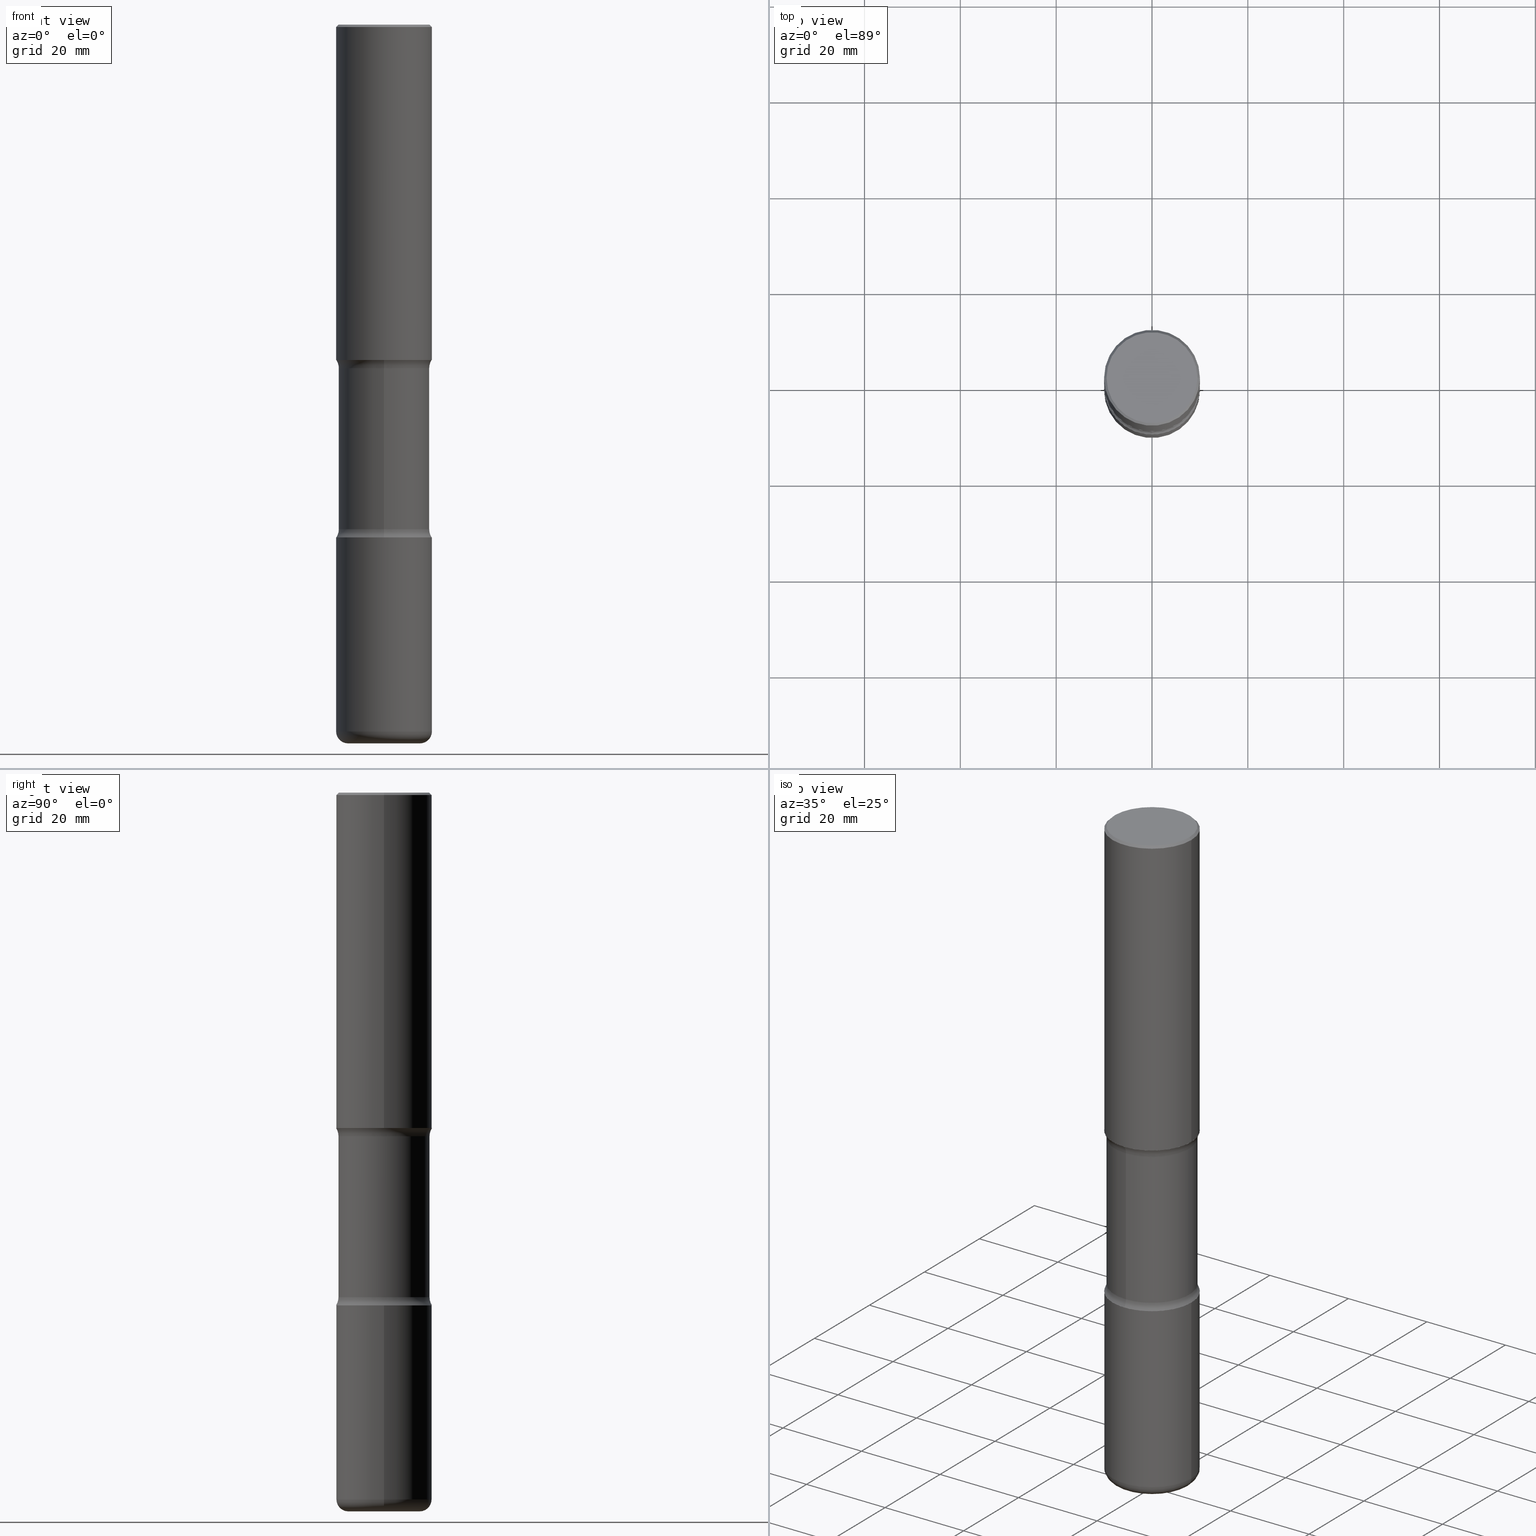
[diagram: canonical four-view strip — front | top / right | iso, engineering-drawing reading convention]
A machine part, canonical four-view strip (front | top / right | iso — engineering-drawing reading convention). The complete STEP part file that produces these views, byte-faithful:
ISO-10303-21;
HEADER;
FILE_DESCRIPTION (( 'STEP AP203' ),
    '1' );
FILE_NAME ('47755.STEP',
    '2024-03-02T08:35:50',
    ( '' ),
    ( '' ),
    'SwSTEP 2.0',
    'SolidWorks 2023',
    '' );
FILE_SCHEMA (( 'CONFIG_CONTROL_DESIGN' ));
ENDSEC;

DATA;
#1 = DIRECTION ( 'NONE',  ( 6.982962677686266711E-15, 1.000000000000000000, -2.921762560068729411E-15 ) ) ;
#2 = DIRECTION ( 'NONE',  ( 1.000000000000000000, -6.982962677686267499E-15, 4.883557194083112901E-29 ) ) ;
#3 = DIRECTION ( 'NONE',  ( 2.499563752616943710E-29, -3.414014296659653741E-15, -1.000000000000000000 ) ) ;
#4 = DIRECTION ( 'NONE',  ( -1.000000000000000000, 6.982962677686266711E-15, 0.000000000000000000 ) ) ;
#5 = DIRECTION ( 'NONE',  ( 1.000000000000000000, 0.000000000000000000, 0.000000000000000000 ) ) ;
#6 = ADVANCED_FACE ( 'NONE', ( #258 ), #403, .T. ) ;
#7 = AXIS2_PLACEMENT_3D ( 'NONE', #197, #68, #147 ) ;
#8 = AXIS2_PLACEMENT_3D ( 'NONE', #211, #200, #552 ) ;
#9 = PLANE ( 'NONE',  #429 ) ;
#10 = MECHANICAL_CONTEXT ( 'NONE', #318, 'mechanical' ) ;
#11 = ORIENTED_EDGE ( 'NONE', *, *, #72, .T. ) ;
#12 = CC_DESIGN_DATE_AND_TIME_ASSIGNMENT ( #285, #29, ( #149 ) ) ;
#13 = CYLINDRICAL_SURFACE ( 'NONE', #362, 0.3937000000000003830 ) ;
#14 = VERTEX_POINT ( 'NONE', #235 ) ;
#15 = CYLINDRICAL_SURFACE ( 'NONE', #461, 0.3740000000000001656 ) ;
#16 = CIRCLE ( 'NONE', #354, 0.3736999999999999211 ) ;
#17 = AXIS2_PLACEMENT_3D ( 'NONE', #75, #556, #2 ) ;
#18 = PERSON_AND_ORGANIZATION_ROLE ( 'design_supplier' ) ;
#19 = CARTESIAN_POINT ( 'NONE',  ( 1.420108190439770332E-28, -2.027538128279602429E-14, -5.807099999999998374 ) ) ;
#20 = COORDINATED_UNIVERSAL_TIME_OFFSET ( 5, 0, .BEHIND. ) ;
#21 = EDGE_CURVE ( 'NONE', #129, #203, #104, .T. ) ;
#22 = CARTESIAN_POINT ( 'NONE',  ( 2.611628041454766160E-15, 0.3739999999999856772, -4.145243411606584161 ) ) ;
#23 = APPROVAL_ROLE ( '' ) ;
#24 = EDGE_LOOP ( 'NONE', ( #51, #288 ) ) ;
#25 = CARTESIAN_POINT ( 'NONE',  ( 1.030178189293550378E-28, -1.470821428801063089E-14, -4.212599999999998346 ) ) ;
#26 = VERTEX_POINT ( 'NONE', #520 ) ;
#27 = CIRCLE ( 'NONE', #295, 0.3937000000000004385 ) ;
#28 = CC_DESIGN_APPROVAL ( #449, ( #252 ) ) ;
#29 = DATE_TIME_ROLE ( 'classification_date' ) ;
#30 = ORIENTED_EDGE ( 'NONE', *, *, #78, .F. ) ;
#31 = DIRECTION ( 'NONE',  ( 1.000000000000000000, -6.860497997771530774E-15, 4.841747577276637457E-29 ) ) ;
#32 = VERTEX_POINT ( 'NONE', #95 ) ;
#33 = DATE_AND_TIME ( #233, #402 ) ;
#34 = PRODUCT_RELATED_PRODUCT_CATEGORY ( 'detail', '', ( #165 ) ) ;
#35 = EDGE_LOOP ( 'NONE', ( #347, #413 ) ) ;
#36 = LINE ( 'NONE', #283, #181 ) ;
#37 = ORIENTED_EDGE ( 'NONE', *, *, #21, .F. ) ;
#38 = DIRECTION ( 'NONE',  ( -6.982962677686268288E-15, -1.000000000000000000, 0.000000000000000000 ) ) ;
#39 = CLOSED_SHELL ( 'NONE', ( #6, #437, #168, #468, #208, #277 ) ) ;
#40 = AXIS2_PLACEMENT_3D ( 'NONE', #377, #407, #505 ) ;
#41 = EDGE_LOOP ( 'NONE', ( #379, #350 ) ) ;
#42 = DIRECTION ( 'NONE',  ( 6.982962677686265922E-15, 1.000000000000000000, -2.775563112689114723E-15 ) ) ;
#43 = EDGE_CURVE ( 'NONE', #330, #217, #496, .T. ) ;
#44 = DIRECTION ( 'NONE',  ( 1.000000000000000000, -6.982962677686270655E-15, 0.000000000000000000 ) ) ;
#45 = CARTESIAN_POINT ( 'NONE',  ( 1.013341980608738414E-28, -1.447825793226129018E-14, -4.145243411606583273 ) ) ;
#46 = ORIENTED_EDGE ( 'NONE', *, *, #388, .F. ) ;
#47 = CLOSED_SHELL ( 'NONE', ( #530, #448, #457, #334, #73, #184 ) ) ;
#48 = CIRCLE ( 'NONE', #470, 0.3936999999999999389 ) ;
#49 = APPROVAL_PERSON_ORGANIZATION ( #492, #449, #263 ) ;
#50 = DIRECTION ( 'NONE',  ( 2.499563752616943710E-29, -3.414014296659653741E-15, -1.000000000000000000 ) ) ;
#51 = ORIENTED_EDGE ( 'NONE', *, *, #434, .F. ) ;
#52 = CARTESIAN_POINT ( 'NONE',  ( 1.030178189293550378E-28, -1.470821428801063089E-14, -4.212599999999998346 ) ) ;
#53 = LINE ( 'NONE', #531, #525 ) ;
#54 = VERTEX_POINT ( 'NONE', #517 ) ;
#55 = DIRECTION ( 'NONE',  ( 1.000000000000000000, -6.860497997771530774E-15, 4.841747577276637457E-29 ) ) ;
#56 = AXIS2_PLACEMENT_3D ( 'NONE', #253, #511, #273 ) ;
#57 = DIRECTION ( 'NONE',  ( 6.982962677686266711E-15, 1.000000000000000000, -2.921762560068729411E-15 ) ) ;
#58 = CIRCLE ( 'NONE', #331, 0.3937000000000004940 ) ;
#59 = CARTESIAN_POINT ( 'NONE',  ( 0.3736999999999999211, -2.667287895133367964E-15, 8.537024980219274507E-18 ) ) ;
#60 = COORDINATED_UNIVERSAL_TIME_OFFSET ( 5, 0, .BEHIND. ) ;
#61 = MANIFOLD_SOLID_BREP ( 'Body-Move/Copy2[2]', #39 ) ;
#62 = AXIS2_PLACEMENT_3D ( 'NONE', #560, #478, #293 ) ;
#63 = APPROVAL_DATE_TIME ( #33, #167 ) ;
#64 = CYLINDRICAL_SURFACE ( 'NONE', #7, 0.3740000000000001656 ) ;
#65 = ADVANCED_FACE ( 'NONE', ( #228 ), #146, .F. ) ;
#66 = CARTESIAN_POINT ( 'NONE',  ( -3.423388500887925735E-15, -0.4990000000000099356, -2.823256588393412425 ) ) ;
#67 = ORIENTED_EDGE ( 'NONE', *, *, #451, .T. ) ;
#68 = DIRECTION ( 'NONE',  ( 2.499563752616943710E-29, -3.414014296659653741E-15, -1.000000000000000000 ) ) ;
#69 = CIRCLE ( 'NONE', #278, 0.3937000000000002720 ) ;
#70 = ORIENTED_EDGE ( 'NONE', *, *, #493, .T. ) ;
#71 = DIRECTION ( 'NONE',  ( -2.445468806185136597E-29, 3.491481338843145583E-15, 1.000000000000000000 ) ) ;
#72 = EDGE_CURVE ( 'NONE', #203, #346, #368, .T. ) ;
#73 = ADVANCED_FACE ( 'NONE', ( #431 ), #310, .T. ) ;
#74 = ORIENTED_EDGE ( 'NONE', *, *, #559, .T. ) ;
#75 = CARTESIAN_POINT ( 'NONE',  ( 1.420108190439770332E-28, -2.027538128279602429E-14, -5.807099999999998374 ) ) ;
#76 = CIRCLE ( 'NONE', #98, 0.3937000000000002720 ) ;
#77 = APPROVAL_PERSON_ORGANIZATION ( #374, #474, #450 ) ;
#78 = EDGE_CURVE ( 'NONE', #26, #137, #119, .T. ) ;
#79 = CARTESIAN_POINT ( 'NONE',  ( 4.890937612370298557E-31, -6.982962677686327354E-17, -0.02000000000000010103 ) ) ;
#80 = FACE_OUTER_BOUND ( 'NONE', #41, .T. ) ;
#81 = DIRECTION ( 'NONE',  ( 6.982962677686266711E-15, 1.000000000000000000, -2.921762560068729411E-15 ) ) ;
#82 = FACE_OUTER_BOUND ( 'NONE', #316, .T. ) ;
#83 = DIRECTION ( 'NONE',  ( -6.982962677686266711E-15, -1.000000000000000000, 3.491481338843145583E-15 ) ) ;
#84 = CLOSED_SHELL ( 'NONE', ( #557, #373, #239, #191, #173, #108, #65, #282 ) ) ;
#85 = CONICAL_SURFACE ( 'NONE', #526, 0.3936999999999999389, 0.7853981633974471688 ) ;
#86 = CARTESIAN_POINT ( 'NONE',  ( -0.3937000000000001054, 2.797406750687515181E-15, -1.936584745033357016E-29 ) ) ;
#87 = ORIENTED_EDGE ( 'NONE', *, *, #538, .T. ) ;
#88 = CARTESIAN_POINT ( 'NONE',  ( 1.030178189293550378E-28, -1.470821428801063089E-14, -4.212599999999998346 ) ) ;
#89 = PERSON_AND_ORGANIZATION ( #396, #344 ) ;
#90 = CARTESIAN_POINT ( 'NONE',  ( 3.484498376165549498E-15, 0.4989999999999857327, -4.145243411606585049 ) ) ;
#91 = DIRECTION ( 'NONE',  ( 2.499563752616943430E-29, -3.414014296659653741E-15, -1.000000000000000000 ) ) ;
#92 = ORIENTED_EDGE ( 'NONE', *, *, #367, .T. ) ;
#93 = CC_DESIGN_DATE_AND_TIME_ASSIGNMENT ( #308, #486, ( #252 ) ) ;
#94 = ORIENTED_EDGE ( 'NONE', *, *, #178, .T. ) ;
#95 = CARTESIAN_POINT ( 'NONE',  ( -0.3937000000000002720, -2.048594773559823141E-15, -2.755899999999998240 ) ) ;
#96 = ORIENTED_EDGE ( 'NONE', *, *, #210, .F. ) ;
#97 = EDGE_CURVE ( 'NONE', #54, #247, #541, .T. ) ;
#98 = AXIS2_PLACEMENT_3D ( 'NONE', #381, #50, #42 ) ;
#99 = PERSON_AND_ORGANIZATION_ROLE ( 'creator' ) ;
#100 = PERSON_AND_ORGANIZATION_ROLE ( 'design_owner' ) ;
#101 = EDGE_CURVE ( 'NONE', #400, #14, #27, .T. ) ;
#102 = VERTEX_POINT ( 'NONE', #59 ) ;
#103 = COORDINATED_UNIVERSAL_TIME_OFFSET ( 5, 0, .BEHIND. ) ;
#104 = CIRCLE ( 'NONE', #417, 0.1249999999999999029 ) ;
#105 = DIRECTION ( 'NONE',  ( -2.445468806185136597E-29, 3.491481338843145583E-15, 1.000000000000000000 ) ) ;
#106 = CIRCLE ( 'NONE', #176, 0.3937000000000004940 ) ;
#107 = VECTOR ( 'NONE', #519, 39.37007874015748143 ) ;
#108 = ADVANCED_FACE ( 'NONE', ( #256 ), #397, .F. ) ;
#109 = CARTESIAN_POINT ( 'NONE',  ( 1.420108190439770332E-28, -2.027538128279602429E-14, -5.807099999999998374 ) ) ;
#110 = DIRECTION ( 'NONE',  ( 1.000000000000000000, -6.982962677686270655E-15, 0.000000000000000000 ) ) ;
#111 = EDGE_CURVE ( 'NONE', #346, #203, #213, .T. ) ;
#112 = TOROIDAL_SURFACE ( 'NONE', #320, 0.2953000000000005620, 0.09840000000000062585 ) ;
#113 = ORIENTED_EDGE ( 'NONE', *, *, #97, .F. ) ;
#114 = DIRECTION ( 'NONE',  ( -0.7071067811865466846, 2.468850131082247989E-15, -0.7071067811865483499 ) ) ;
#115 = ORIENTED_EDGE ( 'NONE', *, *, #510, .T. ) ;
#116 = ORIENTED_EDGE ( 'NONE', *, *, #341, .F. ) ;
#117 = CARTESIAN_POINT ( 'NONE',  ( 0.3936999999999999389, -2.770807688499514945E-15, -0.02000000000000010103 ) ) ;
#118 = LINE ( 'NONE', #86, #361 ) ;
#119 = CIRCLE ( 'NONE', #383, 0.3740000000000001656 ) ;
#120 = AXIS2_PLACEMENT_3D ( 'NONE', #300, #439, #1 ) ;
#121 = AXIS2_PLACEMENT_3D ( 'NONE', #555, #428, #382 ) ;
#122 = FACE_OUTER_BOUND ( 'NONE', #35, .T. ) ;
#123 = DIRECTION ( 'NONE',  ( 1.000000000000000000, -6.982962677686265133E-15, 0.000000000000000000 ) ) ;
#124 = ORIENTED_EDGE ( 'NONE', *, *, #205, .F. ) ;
#125 = PRODUCT_DEFINITION_SHAPE ( 'NONE', 'NONE',  #252 ) ;
#126 = CARTESIAN_POINT ( 'NONE',  ( 0.2953000000000005620, -2.233745016151678477E-14, -5.807099999999998374 ) ) ;
#127 = ORIENTED_EDGE ( 'NONE', *, *, #205, .T. ) ;
#128 = DIRECTION ( 'NONE',  ( -2.445468806185136597E-29, 3.491481338843145583E-15, 1.000000000000000000 ) ) ;
#129 = VERTEX_POINT ( 'NONE', #169 ) ;
#130 = EDGE_CURVE ( 'NONE', #313, #346, #286, .T. ) ;
#131 = CARTESIAN_POINT ( 'NONE',  ( 4.890937612370298557E-31, -6.982962677686327354E-17, -0.02000000000000010103 ) ) ;
#132 = TOROIDAL_SURFACE ( 'NONE', #201, 0.4990000000000000546, 0.1249999999999998612 ) ;
#133 = DIRECTION ( 'NONE',  ( 2.499563752616943710E-29, -3.414014296659653741E-15, -1.000000000000000000 ) ) ;
#134 = CC_DESIGN_PERSON_AND_ORGANIZATION_ASSIGNMENT ( #533, #100, ( #165 ) ) ;
#135 = CARTESIAN_POINT ( 'NONE',  ( -2.565826251166408560E-15, -0.3740000000000206493, -5.905499999999997307 ) ) ;
#136 = CARTESIAN_POINT ( 'NONE',  ( 1.030178189293550378E-28, -1.470821428801063089E-14, -4.212599999999998346 ) ) ;
#137 = VERTEX_POINT ( 'NONE', #475 ) ;
#138 = APPROVAL_STATUS ( 'not_yet_approved' ) ;
#139 = ORIENTED_EDGE ( 'NONE', *, *, #459, .F. ) ;
#140 = EDGE_LOOP ( 'NONE', ( #325, #74, #67, #96 ) ) ;
#141 = AXIS2_PLACEMENT_3D ( 'NONE', #52, #269, #523 ) ;
#142 = APPROVAL_PERSON_ORGANIZATION ( #89, #167, #23 ) ;
#143 =( LENGTH_UNIT ( ) NAMED_UNIT ( * ) SI_UNIT ( $, .METRE. ) );
#144 = EDGE_LOOP ( 'NONE', ( #339, #337, #359, #466 ) ) ;
#145 = DIRECTION ( 'NONE',  ( -2.445468806185136877E-29, 3.491481338843145188E-15, 1.000000000000000000 ) ) ;
#146 = TOROIDAL_SURFACE ( 'NONE', #294, 0.4990000000000002212, 0.1249999999999998751 ) ;
#147 = DIRECTION ( 'NONE',  ( 6.982962677686266711E-15, 1.000000000000000000, -2.921762560068729411E-15 ) ) ;
#148 = AXIS2_PLACEMENT_3D ( 'NONE', #66, #31, #545 ) ;
#149 = SECURITY_CLASSIFICATION ( '', '', #193 ) ;
#150 = DIRECTION ( 'NONE',  ( 1.000000000000000000, -6.982962677686269077E-15, 0.000000000000000000 ) ) ;
#151 = CARTESIAN_POINT ( 'NONE',  ( -2.087702828670439639E-46, 2.980686340760894400E-32, 8.537024980200822558E-18 ) ) ;
#152 = ORIENTED_EDGE ( 'NONE', *, *, #160, .F. ) ;
#153 = DIRECTION ( 'NONE',  ( 1.000000000000000000, -6.982962677686266711E-15, 4.876212485538976239E-29 ) ) ;
#154 = AXIS2_PLACEMENT_3D ( 'NONE', #522, #128, #44 ) ;
#155 = ORIENTED_EDGE ( 'NONE', *, *, #335, .T. ) ;
#156 = LINE ( 'NONE', #338, #107 ) ;
#157 = ORIENTED_EDGE ( 'NONE', *, *, #459, .T. ) ;
#158 = EDGE_LOOP ( 'NONE', ( #521, #321, #115, #554 ) ) ;
#159 = CARTESIAN_POINT ( 'NONE',  ( 6.660667374498401538E-29, -9.735019662066511300E-15, -2.755899999999998240 ) ) ;
#160 = EDGE_CURVE ( 'NONE', #137, #26, #190, .T. ) ;
#161 = CARTESIAN_POINT ( 'NONE',  ( 4.890937612370298557E-31, -6.982962677686327354E-17, -0.02000000000000010103 ) ) ;
#162 = CIRCLE ( 'NONE', #62, 0.3937000000000002164 ) ;
#163 = FACE_OUTER_BOUND ( 'NONE', #551, .T. ) ;
#164 = VECTOR ( 'NONE', #180, 39.37007874015748143 ) ;
#165 = PRODUCT ( '47755', '47755', '', ( #10 ) ) ;
#166 = CARTESIAN_POINT ( 'NONE',  ( 3.484498376165515577E-15, 0.4989999999999901736, -2.823256588393415534 ) ) ;
#167 = APPROVAL ( #265, 'UNSPECIFIED' ) ;
#168 = ADVANCED_FACE ( 'NONE', ( #221 ), #240, .T. ) ;
#169 = CARTESIAN_POINT ( 'NONE',  ( 2.749192406205187346E-15, 0.3936999999999854505, -4.212600000000000122 ) ) ;
#170 = DIRECTION ( 'NONE',  ( 6.982962677686265922E-15, 1.000000000000000000, -2.775563112689113540E-15 ) ) ;
#171 = CARTESIAN_POINT ( 'NONE',  ( -3.423388500887893787E-15, -0.4990000000000146541, -4.145243411606581496 ) ) ;
#172 =( CONVERSION_BASED_UNIT ( 'INCH', #268 ) LENGTH_UNIT ( ) NAMED_UNIT ( #542 ) );
#173 = ADVANCED_FACE ( 'NONE', ( #264 ), #425, .F. ) ;
#174 = CARTESIAN_POINT ( 'NONE',  ( 6.739467482965614869E-29, -9.622173421717819657E-15, -2.755899999999998240 ) ) ;
#175 = ORIENTED_EDGE ( 'NONE', *, *, #234, .F. ) ;
#176 = AXIS2_PLACEMENT_3D ( 'NONE', #109, #454, #328 ) ;
#177 = DIRECTION ( 'NONE',  ( 2.499563752616943710E-29, -3.414014296659653741E-15, -1.000000000000000000 ) ) ;
#178 = EDGE_CURVE ( 'NONE', #137, #203, #53, .T. ) ;
#179 = CARTESIAN_POINT ( 'NONE',  ( 0.000000000000000000, 0.000000000000000000, 0.000000000000000000 ) ) ;
#180 = DIRECTION ( 'NONE',  ( -2.445468806185136877E-29, 3.491481338843145188E-15, 1.000000000000000000 ) ) ;
#181 = VECTOR ( 'NONE', #145, 39.37007874015748143 ) ;
#182 = CARTESIAN_POINT ( 'NONE',  ( 0.3936999999999999389, -2.770807688499514945E-15, -0.02000000000000010103 ) ) ;
#183 = ORIENTED_EDGE ( 'NONE', *, *, #178, .F. ) ;
#184 = ADVANCED_FACE ( 'NONE', ( #393 ), #9, .F. ) ;
#185 = CARTESIAN_POINT ( 'NONE',  ( 4.890937612370298557E-31, -6.982962677686327354E-17, -0.02000000000000010103 ) ) ;
#186 = ORIENTED_EDGE ( 'NONE', *, *, #430, .F. ) ;
#187 = FACE_OUTER_BOUND ( 'NONE', #158, .T. ) ;
#188 = AXIS2_PLACEMENT_3D ( 'NONE', #540, #463, #458 ) ;
#189 = PLANE ( 'NONE',  #40 ) ;
#190 = CIRCLE ( 'NONE', #460, 0.3740000000000001656 ) ;
#191 = ADVANCED_FACE ( 'NONE', ( #163 ), #536, .F. ) ;
#192 = EDGE_CURVE ( 'NONE', #26, #400, #259, .T. ) ;
#193 = SECURITY_CLASSIFICATION_LEVEL ( 'unclassified' ) ;
#194 = DIRECTION ( 'NONE',  ( 2.499563752616943710E-29, -3.414014296659653741E-15, -1.000000000000000000 ) ) ;
#195 = APPROVAL_DATE_TIME ( #405, #474 ) ;
#196 = ORIENTED_EDGE ( 'NONE', *, *, #111, .T. ) ;
#197 = CARTESIAN_POINT ( 'NONE',  ( 1.453329336974072664E-28, -2.048779909082575425E-14, -5.905499999999998195 ) ) ;
#198 = ORIENTED_EDGE ( 'NONE', *, *, #111, .F. ) ;
#199 = UNCERTAINTY_MEASURE_WITH_UNIT (LENGTH_MEASURE( 1.000000000000000082E-05 ), #172, 'distance_accuracy_value', 'NONE');
#200 = DIRECTION ( 'NONE',  ( 2.438088387897960049E-29, -3.491481338843145188E-15, -1.000000000000000000 ) ) ;
#201 = AXIS2_PLACEMENT_3D ( 'NONE', #411, #194, #502 ) ;
#202 = CIRCLE ( 'NONE', #261, 0.3937000000000002164 ) ;
#203 = VERTEX_POINT ( 'NONE', #22 ) ;
#204 = ORIENTED_EDGE ( 'NONE', *, *, #388, .T. ) ;
#205 = EDGE_CURVE ( 'NONE', #247, #54, #69, .T. ) ;
#206 = ORIENTED_EDGE ( 'NONE', *, *, #231, .T. ) ;
#207 = DIRECTION ( 'NONE',  ( -1.000000000000000000, 7.105427357600994759E-15, 0.000000000000000000 ) ) ;
#208 = ADVANCED_FACE ( 'NONE', ( #455 ), #189, .F. ) ;
#209 = DIRECTION ( 'NONE',  ( 2.499563752616943710E-29, -3.414014296659653741E-15, -1.000000000000000000 ) ) ;
#210 = EDGE_CURVE ( 'NONE', #301, #484, #364, .T. ) ;
#211 = CARTESIAN_POINT ( 'NONE',  ( 2.609533152651356620E-15, 0.3736999999999999211, -1.300498063835582814E-15 ) ) ;
#212 = EDGE_CURVE ( 'NONE', #102, #301, #16, .T. ) ;
#213 = CIRCLE ( 'NONE', #504, 0.3740000000000001656 ) ;
#214 = DIRECTION ( 'NONE',  ( 6.982962677686266711E-15, 1.000000000000000000, -2.921762560068729411E-15 ) ) ;
#215 = CC_DESIGN_APPROVAL ( #474, ( #149 ) ) ;
#216 = ORIENTED_EDGE ( 'NONE', *, *, #559, .F. ) ;
#217 = VERTEX_POINT ( 'NONE', #237 ) ;
#218 = CARTESIAN_POINT ( 'NONE',  ( 6.660667374498401538E-29, -9.735019662066511300E-15, -2.755899999999998240 ) ) ;
#219 = ORIENTED_EDGE ( 'NONE', *, *, #231, .F. ) ;
#220 = LINE ( 'NONE', #182, #271 ) ;
#221 = FACE_OUTER_BOUND ( 'NONE', #432, .T. ) ;
#222 =( NAMED_UNIT ( * ) SI_UNIT ( $, .STERADIAN. ) SOLID_ANGLE_UNIT ( ) );
#223 = ORIENTED_EDGE ( 'NONE', *, *, #430, .T. ) ;
#224 = DIRECTION ( 'NONE',  ( 2.445468806185136597E-29, -3.491481338843145583E-15, -1.000000000000000000 ) ) ;
#225 = CIRCLE ( 'NONE', #154, 0.2953000000000005620 ) ;
#226 = VECTOR ( 'NONE', #177, 39.37007874015748143 ) ;
#227 = APPLICATION_PROTOCOL_DEFINITION ( 'international standard', 'config_control_design', 1994, #318 ) ;
#228 = FACE_OUTER_BOUND ( 'NONE', #532, .T. ) ;
#229 = APPLICATION_PROTOCOL_DEFINITION ( 'international standard', 'config_control_design', 1994, #352 ) ;
#230 = EDGE_LOOP ( 'NONE', ( #46, #327 ) ) ;
#231 = EDGE_CURVE ( 'NONE', #217, #547, #106, .T. ) ;
#232 = TOROIDAL_SURFACE ( 'NONE', #121, 0.4990000000000002212, 0.1249999999999998751 ) ;
#233 = CALENDAR_DATE ( 2024, 2, 3 ) ;
#234 = EDGE_CURVE ( 'NONE', #217, #54, #36, .T. ) ;
#235 = CARTESIAN_POINT ( 'NONE',  ( 2.749192406205151847E-15, 0.3936999999999906685, -2.755899999999999572 ) ) ;
#236 = PERSON_AND_ORGANIZATION ( #396, #344 ) ;
#237 = CARTESIAN_POINT ( 'NONE',  ( 0.3937000000000008271, -2.302457368900111381E-14, -5.807099999999998374 ) ) ;
#238 = CARTESIAN_POINT ( 'NONE',  ( 6.856494937320590076E-29, -9.925643892983175518E-15, -2.823256588393414201 ) ) ;
#239 = ADVANCED_FACE ( 'NONE', ( #503 ), #132, .F. ) ;
#240 = CONICAL_SURFACE ( 'NONE', #314, 0.3936999999999999389, 0.7853981633974471688 ) ;
#241 = FACE_OUTER_BOUND ( 'NONE', #290, .T. ) ;
#242 = CC_DESIGN_APPROVAL ( #167, ( #483 ) ) ;
#243 = DIRECTION ( 'NONE',  ( -2.445468806185136597E-29, 3.491481338843145583E-15, 1.000000000000000000 ) ) ;
#244 = CC_DESIGN_PERSON_AND_ORGANIZATION_ASSIGNMENT ( #446, #99, ( #252 ) ) ;
#245 = DIRECTION ( 'NONE',  ( -2.445468806185136597E-29, 3.491481338843145583E-15, 1.000000000000000000 ) ) ;
#246 = VERTEX_POINT ( 'NONE', #375 ) ;
#247 = VERTEX_POINT ( 'NONE', #287 ) ;
#248 = LINE ( 'NONE', #395, #164 ) ;
#249 = VECTOR ( 'NONE', #114, 39.37007874015748143 ) ;
#250 = LOCAL_TIME ( 3, 35, 50.00000000000000000, #60 ) ;
#251 = DIRECTION ( 'NONE',  ( 2.445468806185136597E-29, -3.491481338843145583E-15, -1.000000000000000000 ) ) ;
#252 = PRODUCT_DEFINITION ( 'UNKNOWN', '', #483, #480 ) ;
#253 = CARTESIAN_POINT ( 'NONE',  ( 0.000000000000000000, 0.000000000000000000, 0.000000000000000000 ) ) ;
#254 = DIRECTION ( 'NONE',  ( 1.000000000000000000, -6.982962677686266711E-15, 0.000000000000000000 ) ) ;
#255 = ORIENTED_EDGE ( 'NONE', *, *, #451, .F. ) ;
#256 = FACE_OUTER_BOUND ( 'NONE', #415, .T. ) ;
#257 = CARTESIAN_POINT ( 'NONE',  ( -2.700978061722587749E-15, -0.3937000000000100419, -2.755899999999997352 ) ) ;
#258 = FACE_OUTER_BOUND ( 'NONE', #501, .T. ) ;
#259 = CIRCLE ( 'NONE', #148, 0.1249999999999998335 ) ;
#260 = DIRECTION ( 'NONE',  ( 6.982962677686265922E-15, 1.000000000000000000, -3.414014296659653741E-15 ) ) ;
#261 = AXIS2_PLACEMENT_3D ( 'NONE', #467, #422, #123 ) ;
#262 = EDGE_CURVE ( 'NONE', #246, #330, #497, .T. ) ;
#263 = APPROVAL_ROLE ( '' ) ;
#264 = FACE_OUTER_BOUND ( 'NONE', #230, .T. ) ;
#265 = APPROVAL_STATUS ( 'not_yet_approved' ) ;
#266 = DIRECTION ( 'NONE',  ( 6.982962677686265922E-15, 1.000000000000000000, -2.775563112689113540E-15 ) ) ;
#267 = EDGE_CURVE ( 'NONE', #547, #217, #58, .T. ) ;
#268 = LENGTH_MEASURE_WITH_UNIT ( LENGTH_MEASURE( 0.02539999999999999897 ), #143 );
#269 = DIRECTION ( 'NONE',  ( -2.445468806185136597E-29, 3.491481338843145583E-15, 1.000000000000000000 ) ) ;
#270 = CIRCLE ( 'NONE', #550, 0.09840000000000061198 ) ;
#271 = VECTOR ( 'NONE', #272, 39.37007874015748143 ) ;
#272 = DIRECTION ( 'NONE',  ( 0.7071067811865466846, -7.319954787623252890E-15, -0.7071067811865483499 ) ) ;
#273 = DIRECTION ( 'NONE',  ( 1.000000000000000000, -6.982962677686266711E-15, 4.876176775795935793E-29 ) ) ;
#274 = CC_DESIGN_PERSON_AND_ORGANIZATION_ASSIGNMENT ( #370, #18, ( #483 ) ) ;
#275 = ORIENTED_EDGE ( 'NONE', *, *, #72, .F. ) ;
#276 = DIRECTION ( 'NONE',  ( 0.000000000000000000, 0.000000000000000000, 1.000000000000000000 ) ) ;
#277 = ADVANCED_FACE ( 'NONE', ( #187 ), #539, .T. ) ;
#278 = AXIS2_PLACEMENT_3D ( 'NONE', #25, #243, #150 ) ;
#279 = COORDINATED_UNIVERSAL_TIME_OFFSET ( 5, 0, .BEHIND. ) ;
#280 = TOROIDAL_SURFACE ( 'NONE', #17, 0.2953000000000005620, 0.09840000000000062585 ) ;
#281 = CARTESIAN_POINT ( 'NONE',  ( 0.2953000000000005620, -2.268101192525895245E-14, -5.905499999999999972 ) ) ;
#282 = ADVANCED_FACE ( 'NONE', ( #241 ), #64, .T. ) ;
#283 = CARTESIAN_POINT ( 'NONE',  ( 0.3937000000000003830, -2.749192406205085978E-15, 1.919750796630861853E-29 ) ) ;
#284 = DIRECTION ( 'NONE',  ( 1.000000000000000000, -6.982962677686269866E-15, 0.000000000000000000 ) ) ;
#285 = DATE_AND_TIME ( #410, #537 ) ;
#286 = CIRCLE ( 'NONE', #401, 0.1249999999999999029 ) ;
#287 = CARTESIAN_POINT ( 'NONE',  ( -0.3937000000000002720, -1.469439103471581201E-14, -4.212599999999998346 ) ) ;
#288 = ORIENTED_EDGE ( 'NONE', *, *, #440, .F. ) ;
#289 = DIRECTION ( 'NONE',  ( 1.000000000000000000, -6.982962677686266711E-15, 4.876212485538976239E-29 ) ) ;
#290 = EDGE_LOOP ( 'NONE', ( #469, #323, #94, #198 ) ) ;
#291 = PLANE ( 'NONE',  #498 ) ;
#292 = ORIENTED_EDGE ( 'NONE', *, *, #434, .T. ) ;
#293 = DIRECTION ( 'NONE',  ( 1.000000000000000000, -6.982962677686265133E-15, 0.000000000000000000 ) ) ;
#294 = AXIS2_PLACEMENT_3D ( 'NONE', #445, #133, #260 ) ;
#295 = AXIS2_PLACEMENT_3D ( 'NONE', #218, #389, #266 ) ;
#296 = CARTESIAN_POINT ( 'NONE',  ( -8.181060289173079042E-30, -4.247187677709596397E-14, -5.905499999999998195 ) ) ;
#297 = CARTESIAN_POINT ( 'NONE',  ( 6.829029461346524548E-29, -9.964976017815853586E-15, -2.823256588393414646 ) ) ;
#298 = ORIENTED_EDGE ( 'NONE', *, *, #160, .T. ) ;
#299 = FACE_OUTER_BOUND ( 'NONE', #304, .T. ) ;
#300 = CARTESIAN_POINT ( 'NONE',  ( 1.013341980608738414E-28, -1.447825793226129018E-14, -4.145243411606583273 ) ) ;
#301 = VERTEX_POINT ( 'NONE', #546 ) ;
#302 = DIRECTION ( 'NONE',  ( 6.982962677686265922E-15, 1.000000000000000000, -2.775563112689114723E-15 ) ) ;
#303 = ORIENTED_EDGE ( 'NONE', *, *, #267, .T. ) ;
#304 = EDGE_LOOP ( 'NONE', ( #92, #514, #219, #508 ) ) ;
#305 = AXIS2_PLACEMENT_3D ( 'NONE', #513, #209, #302 ) ;
#306 = DIRECTION ( 'NONE',  ( 2.499563752616943710E-29, -3.414014296659653741E-15, -1.000000000000000000 ) ) ;
#307 = DIRECTION ( 'NONE',  ( -6.982962677686264344E-15, -1.000000000000000000, 0.000000000000000000 ) ) ;
#308 = DATE_AND_TIME ( #535, #250 ) ;
#309 = EDGE_CURVE ( 'NONE', #301, #102, #343, .T. ) ;
#310 = CYLINDRICAL_SURFACE ( 'NONE', #418, 0.3937000000000003830 ) ;
#311 = CARTESIAN_POINT ( 'NONE',  ( 1.453329336974072664E-28, -2.048779909082575425E-14, -5.905499999999998195 ) ) ;
#312 = DIRECTION ( 'NONE',  ( 1.000000000000000000, -6.982962677686266711E-15, 4.876176775795935793E-29 ) ) ;
#313 = VERTEX_POINT ( 'NONE', #332 ) ;
#314 = AXIS2_PLACEMENT_3D ( 'NONE', #131, #224, #4 ) ;
#315 =( GEOMETRIC_REPRESENTATION_CONTEXT ( 3 ) GLOBAL_UNCERTAINTY_ASSIGNED_CONTEXT ( ( #199 ) ) GLOBAL_UNIT_ASSIGNED_CONTEXT ( ( #172, #360, #222 ) ) REPRESENTATION_CONTEXT ( 'NONE', 'WORKASPACE' ) );
#316 = EDGE_LOOP ( 'NONE', ( #116, #399, #196, #37 ) ) ;
#317 = FACE_OUTER_BOUND ( 'NONE', #376, .T. ) ;
#318 = APPLICATION_CONTEXT ( 'configuration controlled 3d designs of mechanical parts and assemblies' ) ;
#319 = CARTESIAN_POINT ( 'NONE',  ( 1.420108190439770332E-28, -2.027538128279602429E-14, -5.807099999999998374 ) ) ;
#320 = AXIS2_PLACEMENT_3D ( 'NONE', #319, #245, #495 ) ;
#321 = ORIENTED_EDGE ( 'NONE', *, *, #440, .T. ) ;
#322 = LOCAL_TIME ( 3, 35, 50.00000000000000000, #20 ) ;
#323 = ORIENTED_EDGE ( 'NONE', *, *, #78, .T. ) ;
#324 = CARTESIAN_POINT ( 'NONE',  ( 1.444171603492632270E-28, -2.061894304653819197E-14, -5.905499999999999972 ) ) ;
#325 = ORIENTED_EDGE ( 'NONE', *, *, #212, .F. ) ;
#326 = DIRECTION ( 'NONE',  ( -2.445468806185136597E-29, 3.491481338843145583E-15, 1.000000000000000000 ) ) ;
#327 = ORIENTED_EDGE ( 'NONE', *, *, #101, .F. ) ;
#328 = DIRECTION ( 'NONE',  ( 1.000000000000000000, -6.982962677686269866E-15, 0.000000000000000000 ) ) ;
#329 = PERSON_AND_ORGANIZATION_ROLE ( 'creator' ) ;
#330 = VERTEX_POINT ( 'NONE', #281 ) ;
#331 = AXIS2_PLACEMENT_3D ( 'NONE', #19, #105, #284 ) ;
#332 = CARTESIAN_POINT ( 'NONE',  ( -2.700978061722549884E-15, -0.3937000000000149269, -4.212599999999997458 ) ) ;
#333 = AXIS2_PLACEMENT_3D ( 'NONE', #161, #342, #515 ) ;
#334 = ADVANCED_FACE ( 'NONE', ( #464 ), #112, .T. ) ;
#335 = EDGE_CURVE ( 'NONE', #484, #456, #48, .T. ) ;
#336 = ORIENTED_EDGE ( 'NONE', *, *, #309, .F. ) ;
#337 = ORIENTED_EDGE ( 'NONE', *, *, #262, .T. ) ;
#338 = CARTESIAN_POINT ( 'NONE',  ( -0.3937000000000003830, 2.797406750687517153E-15, -1.936584745033358137E-29 ) ) ;
#339 = ORIENTED_EDGE ( 'NONE', *, *, #404, .F. ) ;
#340 = DIRECTION ( 'NONE',  ( -2.445468806185136877E-29, 3.491481338843145188E-15, 1.000000000000000000 ) ) ;
#341 = EDGE_CURVE ( 'NONE', #313, #129, #76, .T. ) ;
#342 = DIRECTION ( 'NONE',  ( -2.445468806185136597E-29, 3.491481338843145583E-15, 1.000000000000000000 ) ) ;
#343 = CIRCLE ( 'NONE', #369, 0.3736999999999999211 ) ;
#344 = ORGANIZATION ( 'UNSPECIFIED', 'UNSPECIFIED', '' ) ;
#345 = CARTESIAN_POINT ( 'NONE',  ( -0.3936999999999999389, 2.679362779428219524E-15, -0.02000000000000010103 ) ) ;
#346 = VERTEX_POINT ( 'NONE', #509 ) ;
#347 = ORIENTED_EDGE ( 'NONE', *, *, #367, .F. ) ;
#348 = DIRECTION ( 'NONE',  ( 2.438088387897960049E-29, -3.491481338843145188E-15, -1.000000000000000000 ) ) ;
#349 = DIRECTION ( 'NONE',  ( -1.000000000000000000, 6.982962677686266711E-15, 0.000000000000000000 ) ) ;
#350 = ORIENTED_EDGE ( 'NONE', *, *, #212, .T. ) ;
#351 = DIRECTION ( 'NONE',  ( -2.499563752616943430E-29, 3.414014296659653741E-15, 1.000000000000000000 ) ) ;
#352 = APPLICATION_CONTEXT ( 'configuration controlled 3d designs of mechanical parts and assemblies' ) ;
#353 = CALENDAR_DATE ( 2024, 2, 3 ) ;
#354 = AXIS2_PLACEMENT_3D ( 'NONE', #548, #372, #289 ) ;
#355 = DIRECTION ( 'NONE',  ( 2.499563752616943710E-29, -3.414014296659653741E-15, -1.000000000000000000 ) ) ;
#356 = CIRCLE ( 'NONE', #333, 0.3936999999999999389 ) ;
#357 = ADVANCED_BREP_SHAPE_REPRESENTATION ( '47755', ( #427, #61, #435, #371 ), #315 ) ;
#358 = DIRECTION ( 'NONE',  ( 6.982962677686265922E-15, 1.000000000000000000, -3.414014296659653741E-15 ) ) ;
#359 = ORIENTED_EDGE ( 'NONE', *, *, #43, .T. ) ;
#360 =( NAMED_UNIT ( * ) PLANE_ANGLE_UNIT ( ) SI_UNIT ( $, .RADIAN. ) );
#361 = VECTOR ( 'NONE', #340, 39.37007874015748143 ) ;
#362 = AXIS2_PLACEMENT_3D ( 'NONE', #441, #491, #390 ) ;
#363 = DIRECTION ( 'NONE',  ( 2.499563752616943710E-29, -3.414014296659653741E-15, -1.000000000000000000 ) ) ;
#364 = LINE ( 'NONE', #414, #249 ) ;
#365 = PERSON_AND_ORGANIZATION ( #396, #344 ) ;
#366 = DIRECTION ( 'NONE',  ( 2.499563752616943710E-29, -3.414014296659653741E-15, -1.000000000000000000 ) ) ;
#367 = EDGE_CURVE ( 'NONE', #330, #246, #225, .T. ) ;
#368 = CIRCLE ( 'NONE', #120, 0.3740000000000001656 ) ;
#369 = AXIS2_PLACEMENT_3D ( 'NONE', #151, #71, #153 ) ;
#370 = PERSON_AND_ORGANIZATION ( #396, #344 ) ;
#371 = AXIS2_PLACEMENT_3D ( 'NONE', #398, #276, #5 ) ;
#372 = DIRECTION ( 'NONE',  ( -2.445468806185136597E-29, 3.491481338843145583E-15, 1.000000000000000000 ) ) ;
#373 = ADVANCED_FACE ( 'NONE', ( #82 ), #232, .F. ) ;
#374 = PERSON_AND_ORGANIZATION ( #396, #344 ) ;
#375 = CARTESIAN_POINT ( 'NONE',  ( -0.2953000000000005620, -1.799934243997356436E-14, -5.905499999999999972 ) ) ;
#376 = EDGE_LOOP ( 'NONE', ( #206, #70, #113, #175 ) ) ;
#377 = CARTESIAN_POINT ( 'NONE',  ( 6.739467482965614869E-29, -9.622173421717819657E-15, -2.755899999999998240 ) ) ;
#378 = CARTESIAN_POINT ( 'NONE',  ( 0.3937000000000002164, -1.237136582792290287E-14, -2.755899999999998240 ) ) ;
#379 = ORIENTED_EDGE ( 'NONE', *, *, #309, .T. ) ;
#380 = CARTESIAN_POINT ( 'NONE',  ( -0.2953000000000005620, -1.817714858409644444E-14, -5.807099999999998374 ) ) ;
#381 = CARTESIAN_POINT ( 'NONE',  ( 1.030178189293550378E-28, -1.470821428801063089E-14, -4.212599999999998346 ) ) ;
#382 = DIRECTION ( 'NONE',  ( 6.982962677686265922E-15, 1.000000000000000000, -3.414014296659653741E-15 ) ) ;
#383 = AXIS2_PLACEMENT_3D ( 'NONE', #297, #355, #479 ) ;
#384 = DIRECTION ( 'NONE',  ( 6.860497997771527618E-15, 1.000000000000000000, 0.000000000000000000 ) ) ;
#385 = ORIENTED_EDGE ( 'NONE', *, *, #97, .T. ) ;
#386 = DIRECTION ( 'NONE',  ( 2.499563752616943710E-29, -3.414014296659653741E-15, -1.000000000000000000 ) ) ;
#387 = DIRECTION ( 'NONE',  ( -6.982962677686265922E-15, -1.000000000000000000, 3.414014296659653741E-15 ) ) ;
#388 = EDGE_CURVE ( 'NONE', #14, #400, #444, .T. ) ;
#389 = DIRECTION ( 'NONE',  ( 2.499563752616943710E-29, -3.414014296659653741E-15, -1.000000000000000000 ) ) ;
#390 = DIRECTION ( 'NONE',  ( 1.000000000000000000, -6.982962677686266711E-15, 4.876176775795935793E-29 ) ) ;
#391 = AXIS2_PLACEMENT_3D ( 'NONE', #126, #83, #487 ) ;
#392 = AXIS2_PLACEMENT_3D ( 'NONE', #324, #326, #110 ) ;
#393 = FACE_OUTER_BOUND ( 'NONE', #423, .T. ) ;
#394 = ORIENTED_EDGE ( 'NONE', *, *, #421, .T. ) ;
#395 = CARTESIAN_POINT ( 'NONE',  ( 0.3937000000000001054, -2.749192406205084005E-15, 1.919750796630860452E-29 ) ) ;
#396 = PERSON ( 'UNSPECIFIED', 'UNSPECIFIED', 'UNSPECIFIED', ('UNSPECIFIED'), ('UNSPECIFIED'), ('UNSPECIFIED') ) ;
#397 = PLANE ( 'NONE',  #558 ) ;
#398 = CARTESIAN_POINT ( 'NONE',  ( 0.000000000000000000, 0.000000000000000000, 0.000000000000000000 ) ) ;
#399 = ORIENTED_EDGE ( 'NONE', *, *, #130, .T. ) ;
#400 = VERTEX_POINT ( 'NONE', #257 ) ;
#401 = AXIS2_PLACEMENT_3D ( 'NONE', #171, #55, #384 ) ;
#402 = LOCAL_TIME ( 3, 35, 50.00000000000000000, #103 ) ;
#403 = CYLINDRICAL_SURFACE ( 'NONE', #56, 0.3937000000000001054 ) ;
#404 = EDGE_CURVE ( 'NONE', #246, #547, #270, .T. ) ;
#405 = DATE_AND_TIME ( #462, #322 ) ;
#406 = DIRECTION ( 'NONE',  ( -2.445468806185136597E-29, 3.491481338843145583E-15, 1.000000000000000000 ) ) ;
#407 = DIRECTION ( 'NONE',  ( -2.438088387897960049E-29, 3.491481338843145188E-15, 1.000000000000000000 ) ) ;
#408 = CC_DESIGN_PERSON_AND_ORGANIZATION_ASSIGNMENT ( #365, #329, ( #483 ) ) ;
#409 = CIRCLE ( 'NONE', #305, 0.3937000000000002720 ) ;
#410 = CALENDAR_DATE ( 2024, 2, 3 ) ;
#411 = CARTESIAN_POINT ( 'NONE',  ( 6.856494937320590076E-29, -9.925643892983175518E-15, -2.823256588393414201 ) ) ;
#412 = SHAPE_DEFINITION_REPRESENTATION ( #125, #357 ) ;
#413 = ORIENTED_EDGE ( 'NONE', *, *, #262, .F. ) ;
#414 = CARTESIAN_POINT ( 'NONE',  ( -0.3936999999999999389, 2.679362779428219524E-15, -0.02000000000000010103 ) ) ;
#415 = EDGE_LOOP ( 'NONE', ( #223, #490 ) ) ;
#416 = DIRECTION ( 'NONE',  ( -1.000000000000000000, 6.982962677686265922E-15, -4.883557194083112340E-29 ) ) ;
#417 = AXIS2_PLACEMENT_3D ( 'NONE', #90, #500, #307 ) ;
#418 = AXIS2_PLACEMENT_3D ( 'NONE', #179, #436, #312 ) ;
#419 = FACE_OUTER_BOUND ( 'NONE', #140, .T. ) ;
#420 = CIRCLE ( 'NONE', #472, 0.1249999999999998335 ) ;
#421 = EDGE_CURVE ( 'NONE', #32, #484, #118, .T. ) ;
#422 = DIRECTION ( 'NONE',  ( -2.445468806185136597E-29, 3.491481338843145583E-15, 1.000000000000000000 ) ) ;
#423 = EDGE_LOOP ( 'NONE', ( #385, #127 ) ) ;
#424 = PLANE ( 'NONE',  #8 ) ;
#425 = PLANE ( 'NONE',  #482 ) ;
#426 = VERTEX_POINT ( 'NONE', #378 ) ;
#427 = MANIFOLD_SOLID_BREP ( 'Body-Move/Copy2[1]', #47 ) ;
#428 = DIRECTION ( 'NONE',  ( 2.499563752616943710E-29, -3.414014296659653741E-15, -1.000000000000000000 ) ) ;
#429 = AXIS2_PLACEMENT_3D ( 'NONE', #136, #348, #488 ) ;
#430 = EDGE_CURVE ( 'NONE', #129, #313, #409, .T. ) ;
#431 = FACE_OUTER_BOUND ( 'NONE', #518, .T. ) ;
#432 = EDGE_LOOP ( 'NONE', ( #216, #336, #528, #155 ) ) ;
#433 = CARTESIAN_POINT ( 'NONE',  ( -0.3937000000000008271, -1.747797453210850398E-14, -5.807099999999998374 ) ) ;
#434 = EDGE_CURVE ( 'NONE', #426, #32, #162, .T. ) ;
#435 = MANIFOLD_SOLID_BREP ( 'Body-Move/Copy2[4]', #84 ) ;
#436 = DIRECTION ( 'NONE',  ( -2.445468806185136597E-29, 3.491481338843145583E-15, 1.000000000000000000 ) ) ;
#437 = ADVANCED_FACE ( 'NONE', ( #419 ), #85, .T. ) ;
#438 = FACE_OUTER_BOUND ( 'NONE', #494, .T. ) ;
#439 = DIRECTION ( 'NONE',  ( 2.499563752616943710E-29, -3.414014296659653741E-15, -1.000000000000000000 ) ) ;
#440 = EDGE_CURVE ( 'NONE', #32, #426, #202, .T. ) ;
#441 = CARTESIAN_POINT ( 'NONE',  ( 0.000000000000000000, 0.000000000000000000, 0.000000000000000000 ) ) ;
#442 = AXIS2_PLACEMENT_3D ( 'NONE', #159, #386, #170 ) ;
#443 = ORIENTED_EDGE ( 'NONE', *, *, #192, .T. ) ;
#444 = CIRCLE ( 'NONE', #442, 0.3937000000000004385 ) ;
#445 = CARTESIAN_POINT ( 'NONE',  ( 1.013706345712835491E-28, -1.447304001658688186E-14, -4.145243411606583273 ) ) ;
#446 = PERSON_AND_ORGANIZATION ( #396, #344 ) ;
#447 = APPROVAL_DATE_TIME ( #524, #449 ) ;
#448 = ADVANCED_FACE ( 'NONE', ( #299 ), #280, .T. ) ;
#449 = APPROVAL ( #138, 'UNSPECIFIED' ) ;
#450 = APPROVAL_ROLE ( '' ) ;
#451 = EDGE_CURVE ( 'NONE', #456, #484, #356, .T. ) ;
#452 = AXIS2_PLACEMENT_3D ( 'NONE', #238, #366, #499 ) ;
#453 = APPROVAL_STATUS ( 'not_yet_approved' ) ;
#454 = DIRECTION ( 'NONE',  ( -2.445468806185136597E-29, 3.491481338843145583E-15, 1.000000000000000000 ) ) ;
#455 = FACE_OUTER_BOUND ( 'NONE', #24, .T. ) ;
#456 = VERTEX_POINT ( 'NONE', #117 ) ;
#457 = ADVANCED_FACE ( 'NONE', ( #122 ), #291, .T. ) ;
#458 = DIRECTION ( 'NONE',  ( 1.000000000000000000, -6.982962677686266711E-15, 4.876176775795935793E-29 ) ) ;
#459 = EDGE_CURVE ( 'NONE', #137, #14, #420, .T. ) ;
#460 = AXIS2_PLACEMENT_3D ( 'NONE', #485, #306, #81 ) ;
#461 = AXIS2_PLACEMENT_3D ( 'NONE', #311, #363, #57 ) ;
#462 = CALENDAR_DATE ( 2024, 2, 3 ) ;
#463 = DIRECTION ( 'NONE',  ( -2.445468806185136597E-29, 3.491481338843145583E-15, 1.000000000000000000 ) ) ;
#464 = FACE_OUTER_BOUND ( 'NONE', #144, .T. ) ;
#465 = ORIENTED_EDGE ( 'NONE', *, *, #101, .T. ) ;
#466 = ORIENTED_EDGE ( 'NONE', *, *, #267, .F. ) ;
#467 = CARTESIAN_POINT ( 'NONE',  ( 6.739467482965614869E-29, -9.622173421717819657E-15, -2.755899999999998240 ) ) ;
#468 = ADVANCED_FACE ( 'NONE', ( #80 ), #424, .F. ) ;
#469 = ORIENTED_EDGE ( 'NONE', *, *, #538, .F. ) ;
#470 = AXIS2_PLACEMENT_3D ( 'NONE', #185, #406, #254 ) ;
#471 = DIRECTION ( 'NONE',  ( 7.105427357601001859E-15, 1.000000000000000000, -3.491481338843145583E-15 ) ) ;
#472 = AXIS2_PLACEMENT_3D ( 'NONE', #166, #416, #38 ) ;
#473 = DIRECTION ( 'NONE',  ( 2.438088387897960049E-29, -3.491481338843145188E-15, -1.000000000000000000 ) ) ;
#474 = APPROVAL ( #453, 'UNSPECIFIED' ) ;
#475 = CARTESIAN_POINT ( 'NONE',  ( 2.611628041454733028E-15, 0.3739999999999901736, -2.823256588393415534 ) ) ;
#476 = ORIENTED_EDGE ( 'NONE', *, *, #192, .F. ) ;
#477 = ORIENTED_EDGE ( 'NONE', *, *, #130, .F. ) ;
#478 = DIRECTION ( 'NONE',  ( -2.445468806185136597E-29, 3.491481338843145583E-15, 1.000000000000000000 ) ) ;
#479 = DIRECTION ( 'NONE',  ( 6.982962677686266711E-15, 1.000000000000000000, -2.921762560068729411E-15 ) ) ;
#480 = DESIGN_CONTEXT ( 'detailed design', #352, 'design' ) ;
#481 = DIRECTION ( 'NONE',  ( -1.000000000000000000, 6.982962677686265922E-15, -4.876176775795935793E-29 ) ) ;
#482 = AXIS2_PLACEMENT_3D ( 'NONE', #174, #91, #358 ) ;
#483 = PRODUCT_DEFINITION_FORMATION_WITH_SPECIFIED_SOURCE ( 'ANY', '', #165, .NOT_KNOWN. ) ;
#484 = VERTEX_POINT ( 'NONE', #345 ) ;
#485 = CARTESIAN_POINT ( 'NONE',  ( 6.829029461346524548E-29, -9.964976017815853586E-15, -2.823256588393414646 ) ) ;
#486 = DATE_TIME_ROLE ( 'creation_date' ) ;
#487 = DIRECTION ( 'NONE',  ( 1.000000000000000000, -6.982962677686257244E-15, 0.000000000000000000 ) ) ;
#488 = DIRECTION ( 'NONE',  ( -1.000000000000000000, 6.982962677686265922E-15, -4.876176775795935793E-29 ) ) ;
#489 = COORDINATED_UNIVERSAL_TIME_OFFSET ( 5, 0, .BEHIND. ) ;
#490 = ORIENTED_EDGE ( 'NONE', *, *, #341, .T. ) ;
#491 = DIRECTION ( 'NONE',  ( -2.445468806185136597E-29, 3.491481338843145583E-15, 1.000000000000000000 ) ) ;
#492 = PERSON_AND_ORGANIZATION ( #396, #344 ) ;
#493 = EDGE_CURVE ( 'NONE', #547, #247, #156, .T. ) ;
#494 = EDGE_LOOP ( 'NONE', ( #298, #87, #275, #183 ) ) ;
#495 = DIRECTION ( 'NONE',  ( 1.000000000000000000, -6.982962677686267499E-15, 4.883557194083112901E-29 ) ) ;
#496 = CIRCLE ( 'NONE', #391, 0.09840000000000061198 ) ;
#497 = CIRCLE ( 'NONE', #392, 0.2953000000000005620 ) ;
#498 = AXIS2_PLACEMENT_3D ( 'NONE', #296, #473, #481 ) ;
#499 = DIRECTION ( 'NONE',  ( 6.982962677686265922E-15, 1.000000000000000000, -3.414014296659653741E-15 ) ) ;
#500 = DIRECTION ( 'NONE',  ( -1.000000000000000000, 6.982962677686265922E-15, -4.883557194083112340E-29 ) ) ;
#501 = EDGE_LOOP ( 'NONE', ( #292, #394, #255, #549 ) ) ;
#502 = DIRECTION ( 'NONE',  ( 6.982962677686265922E-15, 1.000000000000000000, -3.414014296659653741E-15 ) ) ;
#503 = FACE_OUTER_BOUND ( 'NONE', #512, .T. ) ;
#504 = AXIS2_PLACEMENT_3D ( 'NONE', #45, #3, #214 ) ;
#505 = DIRECTION ( 'NONE',  ( 1.000000000000000000, -6.982962677686265922E-15, 4.876176775795935793E-29 ) ) ;
#506 = ORIENTED_EDGE ( 'NONE', *, *, #21, .T. ) ;
#507 = CC_DESIGN_PERSON_AND_ORGANIZATION_ASSIGNMENT ( #236, #544, ( #149 ) ) ;
#508 = ORIENTED_EDGE ( 'NONE', *, *, #43, .F. ) ;
#509 = CARTESIAN_POINT ( 'NONE',  ( -2.633402156444500718E-15, -0.3740000000000146541, -4.145243411606582384 ) ) ;
#510 = EDGE_CURVE ( 'NONE', #426, #456, #248, .T. ) ;
#511 = DIRECTION ( 'NONE',  ( -2.445468806185136597E-29, 3.491481338843145583E-15, 1.000000000000000000 ) ) ;
#512 = EDGE_LOOP ( 'NONE', ( #30, #443, #465, #139 ) ) ;
#513 = CARTESIAN_POINT ( 'NONE',  ( 1.030178189293550378E-28, -1.470821428801063089E-14, -4.212599999999998346 ) ) ;
#514 = ORIENTED_EDGE ( 'NONE', *, *, #404, .T. ) ;
#515 = DIRECTION ( 'NONE',  ( 1.000000000000000000, -6.982962677686266711E-15, 0.000000000000000000 ) ) ;
#516 = CC_DESIGN_SECURITY_CLASSIFICATION ( #149, ( #483 ) ) ;
#517 = CARTESIAN_POINT ( 'NONE',  ( 0.3937000000000002720, -1.745740669421571411E-14, -4.212599999999998346 ) ) ;
#518 = EDGE_LOOP ( 'NONE', ( #553, #303, #534, #124 ) ) ;
#519 = DIRECTION ( 'NONE',  ( -2.445468806185136877E-29, 3.491481338843145188E-15, 1.000000000000000000 ) ) ;
#520 = CARTESIAN_POINT ( 'NONE',  ( -2.633402156444536217E-15, -0.3740000000000101577, -2.823256588393413313 ) ) ;
#521 = ORIENTED_EDGE ( 'NONE', *, *, #421, .F. ) ;
#522 = CARTESIAN_POINT ( 'NONE',  ( 1.444171603492632270E-28, -2.061894304653819197E-14, -5.905499999999999972 ) ) ;
#523 = DIRECTION ( 'NONE',  ( 1.000000000000000000, -6.982962677686269077E-15, 0.000000000000000000 ) ) ;
#524 = DATE_AND_TIME ( #353, #543 ) ;
#525 = VECTOR ( 'NONE', #527, 39.37007874015748143 ) ;
#526 = AXIS2_PLACEMENT_3D ( 'NONE', #79, #251, #349 ) ;
#527 = DIRECTION ( 'NONE',  ( 2.499563752616943710E-29, -3.414014296659653741E-15, -1.000000000000000000 ) ) ;
#528 = ORIENTED_EDGE ( 'NONE', *, *, #210, .T. ) ;
#529 = LINE ( 'NONE', #135, #226 ) ;
#530 = ADVANCED_FACE ( 'NONE', ( #317 ), #13, .T. ) ;
#531 = CARTESIAN_POINT ( 'NONE',  ( 2.611628041454809941E-15, 0.3739999999999796820, -5.905499999999999972 ) ) ;
#532 = EDGE_LOOP ( 'NONE', ( #477, #186, #506, #11 ) ) ;
#533 = PERSON_AND_ORGANIZATION ( #396, #344 ) ;
#534 = ORIENTED_EDGE ( 'NONE', *, *, #234, .T. ) ;
#535 = CALENDAR_DATE ( 2024, 2, 3 ) ;
#536 = TOROIDAL_SURFACE ( 'NONE', #452, 0.4990000000000000546, 0.1249999999999998612 ) ;
#537 = LOCAL_TIME ( 3, 35, 50.00000000000000000, #279 ) ;
#538 = EDGE_CURVE ( 'NONE', #26, #346, #529, .T. ) ;
#539 = CYLINDRICAL_SURFACE ( 'NONE', #188, 0.3937000000000001054 ) ;
#540 = CARTESIAN_POINT ( 'NONE',  ( 0.000000000000000000, 0.000000000000000000, 0.000000000000000000 ) ) ;
#541 = CIRCLE ( 'NONE', #141, 0.3937000000000002720 ) ;
#542 = DIMENSIONAL_EXPONENTS ( 1.000000000000000000, 0.000000000000000000, 0.000000000000000000, 0.000000000000000000, 0.000000000000000000, 0.000000000000000000, 0.000000000000000000 ) ;
#543 = LOCAL_TIME ( 3, 35, 50.00000000000000000, #489 ) ;
#544 = PERSON_AND_ORGANIZATION_ROLE ( 'classification_officer' ) ;
#545 = DIRECTION ( 'NONE',  ( 6.860497997771531562E-15, 1.000000000000000000, 0.000000000000000000 ) ) ;
#546 = CARTESIAN_POINT ( 'NONE',  ( -0.3736999999999999211, 2.644447966039788269E-15, 8.537024980182450727E-18 ) ) ;
#547 = VERTEX_POINT ( 'NONE', #433 ) ;
#548 = CARTESIAN_POINT ( 'NONE',  ( -2.087702828670439639E-46, 2.980686340760894400E-32, 8.537024980200822558E-18 ) ) ;
#549 = ORIENTED_EDGE ( 'NONE', *, *, #510, .F. ) ;
#550 = AXIS2_PLACEMENT_3D ( 'NONE', #380, #471, #207 ) ;
#551 = EDGE_LOOP ( 'NONE', ( #476, #152, #157, #204 ) ) ;
#552 = DIRECTION ( 'NONE',  ( -1.000000000000000000, 6.982962677686265922E-15, -4.876176775795935793E-29 ) ) ;
#553 = ORIENTED_EDGE ( 'NONE', *, *, #493, .F. ) ;
#554 = ORIENTED_EDGE ( 'NONE', *, *, #335, .F. ) ;
#555 = CARTESIAN_POINT ( 'NONE',  ( 1.013706345712835491E-28, -1.447304001658688186E-14, -4.145243411606583273 ) ) ;
#556 = DIRECTION ( 'NONE',  ( -2.445468806185136597E-29, 3.491481338843145583E-15, 1.000000000000000000 ) ) ;
#557 = ADVANCED_FACE ( 'NONE', ( #438 ), #15, .T. ) ;
#558 = AXIS2_PLACEMENT_3D ( 'NONE', #88, #351, #387 ) ;
#559 = EDGE_CURVE ( 'NONE', #102, #456, #220, .T. ) ;
#560 = CARTESIAN_POINT ( 'NONE',  ( 6.739467482965614869E-29, -9.622173421717819657E-15, -2.755899999999998240 ) ) ;
ENDSEC;
END-ISO-10303-21;
